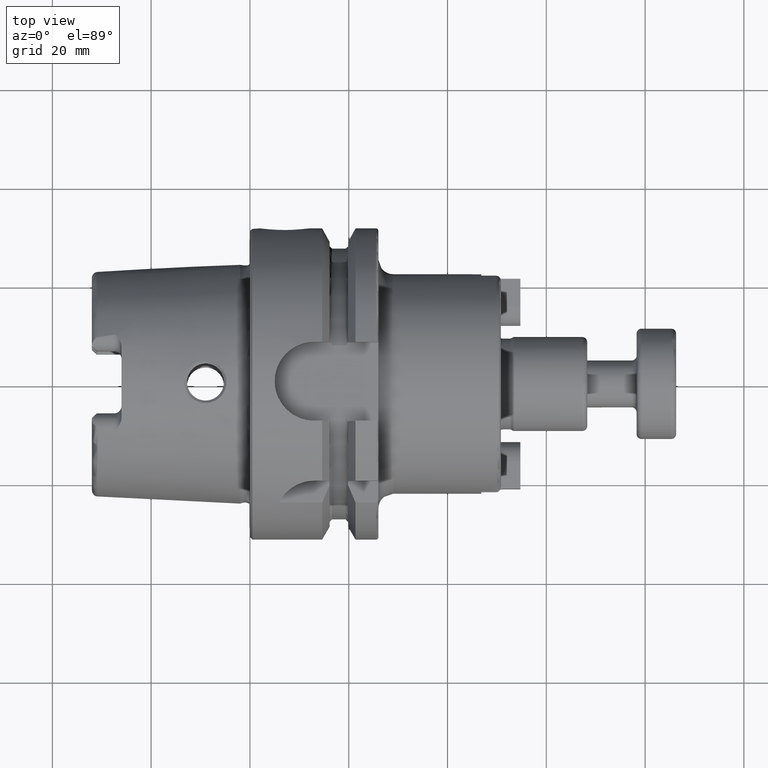
[diagram: clean part render]
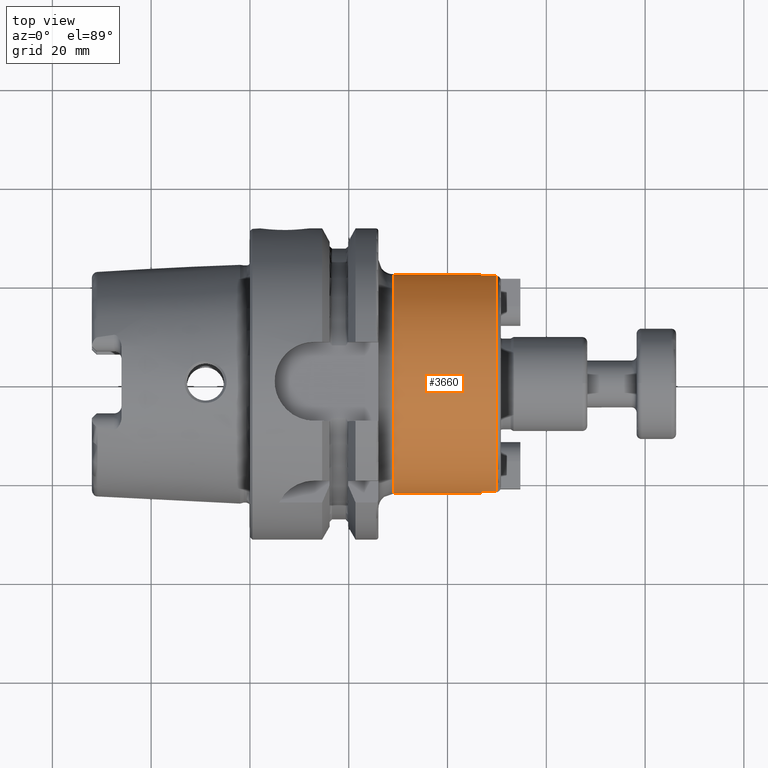
[diagram: same view with one face highlighted and labeled with its STEP entity id]
A machine part, top view. The second image highlights one B-rep face of the part: STEP entity #3660.
In plain terms, the highlighted cylindrical surface (bore or boss wall) has radius 22.225 mm, axis along (1, 0, 0).
Its self-contained STEP definition (entity closure, byte-faithful):
#792=CYLINDRICAL_SURFACE('',#4046,22.225);
#857=FACE_OUTER_BOUND('',#1053,.T.);
#1053=EDGE_LOOP('',(#2747,#2748,#2749,#2750,#2751,#2752,#2753,#2754,#2755,
#2756,#2757,#2758,#2759));
#1253=LINE('',#5721,#1447);
#1256=LINE('',#5747,#1450);
#1261=LINE('',#5768,#1455);
#1264=LINE('',#5792,#1458);
#1266=LINE('',#5796,#1460);
#1447=VECTOR('',#4564,10.);
#1450=VECTOR('',#4581,10.);
#1455=VECTOR('',#4588,10.);
#1458=VECTOR('',#4603,10.);
#1460=VECTOR('',#4607,22.225);
#1641=CIRCLE('',#4033,22.225);
#1643=CIRCLE('',#4035,22.225);
#1645=CIRCLE('',#4041,22.225);
#1648=CIRCLE('',#4047,22.225);
#1649=CIRCLE('',#4048,22.225);
#1650=CIRCLE('',#4049,22.225);
#1651=CIRCLE('',#4050,22.225);
#1879=VERTEX_POINT('',#5704);
#1882=VERTEX_POINT('',#5719);
#1883=VERTEX_POINT('',#5723);
#1885=VERTEX_POINT('',#5727);
#1887=VERTEX_POINT('',#5735);
#1890=VERTEX_POINT('',#5751);
#1893=VERTEX_POINT('',#5766);
#1894=VERTEX_POINT('',#5770);
#1897=VERTEX_POINT('',#5780);
#1899=VERTEX_POINT('',#5795);
#1900=VERTEX_POINT('',#5797);
#2205=EDGE_CURVE('',#1879,#1882,#1253,.T.);
#2206=EDGE_CURVE('',#1882,#1883,#1641,.T.);
#2209=EDGE_CURVE('',#1883,#1885,#1643,.T.);
#2213=EDGE_CURVE('',#1885,#1887,#1256,.T.);
#2219=EDGE_CURVE('',#1890,#1893,#1261,.T.);
#2220=EDGE_CURVE('',#1893,#1894,#1645,.T.);
#2226=EDGE_CURVE('',#1894,#1897,#1264,.T.);
#2228=EDGE_CURVE('',#1883,#1899,#1266,.T.);
#2229=EDGE_CURVE('',#1900,#1899,#1648,.T.);
#2230=EDGE_CURVE('',#1899,#1900,#1649,.T.);
#2231=EDGE_CURVE('',#1890,#1887,#1650,.T.);
#2232=EDGE_CURVE('',#1879,#1897,#1651,.T.);
#2747=ORIENTED_EDGE('',*,*,#2205,.T.);
#2748=ORIENTED_EDGE('',*,*,#2206,.T.);
#2749=ORIENTED_EDGE('',*,*,#2228,.T.);
#2750=ORIENTED_EDGE('',*,*,#2229,.F.);
#2751=ORIENTED_EDGE('',*,*,#2230,.F.);
#2752=ORIENTED_EDGE('',*,*,#2228,.F.);
#2753=ORIENTED_EDGE('',*,*,#2209,.T.);
#2754=ORIENTED_EDGE('',*,*,#2213,.T.);
#2755=ORIENTED_EDGE('',*,*,#2231,.F.);
#2756=ORIENTED_EDGE('',*,*,#2219,.T.);
#2757=ORIENTED_EDGE('',*,*,#2220,.T.);
#2758=ORIENTED_EDGE('',*,*,#2226,.T.);
#2759=ORIENTED_EDGE('',*,*,#2232,.F.);
#3660=ADVANCED_FACE('',(#857),#792,.T.);
#4033=AXIS2_PLACEMENT_3D('',#5724,#4567,#4568);
#4035=AXIS2_PLACEMENT_3D('',#5729,#4572,#4573);
#4041=AXIS2_PLACEMENT_3D('',#5771,#4591,#4592);
#4046=AXIS2_PLACEMENT_3D('',#5794,#4605,#4606);
#4047=AXIS2_PLACEMENT_3D('',#5798,#4608,#4609);
#4048=AXIS2_PLACEMENT_3D('',#5799,#4610,#4611);
#4049=AXIS2_PLACEMENT_3D('',#5800,#4612,#4613);
#4050=AXIS2_PLACEMENT_3D('',#5801,#4614,#4615);
#4564=DIRECTION('',(-1.,0.,0.));
#4567=DIRECTION('center_axis',(-1.,0.,0.));
#4568=DIRECTION('ref_axis',(0.,1.,0.));
#4572=DIRECTION('center_axis',(-1.,0.,0.));
#4573=DIRECTION('ref_axis',(0.,1.,0.));
#4581=DIRECTION('',(1.,0.,0.));
#4588=DIRECTION('',(-1.,0.,0.));
#4591=DIRECTION('center_axis',(-1.,0.,0.));
#4592=DIRECTION('ref_axis',(0.,1.,0.));
#4603=DIRECTION('',(1.,0.,0.));
#4605=DIRECTION('center_axis',(1.,0.,0.));
#4606=DIRECTION('ref_axis',(0.,1.,0.));
#4607=DIRECTION('',(-1.,0.,0.));
#4608=DIRECTION('center_axis',(-1.,0.,0.));
#4609=DIRECTION('ref_axis',(0.,-1.,-1.22464679914735E-16));
#4610=DIRECTION('center_axis',(-1.,0.,0.));
#4611=DIRECTION('ref_axis',(0.,-1.,-1.22464679914735E-16));
#4612=DIRECTION('center_axis',(1.,0.,0.));
#4613=DIRECTION('ref_axis',(0.,-1.,1.83697019872103E-16));
#4614=DIRECTION('center_axis',(1.,0.,0.));
#4615=DIRECTION('ref_axis',(0.,-1.,1.83697019872103E-16));
#5704=CARTESIAN_POINT('',(49.8,-21.868456735673,-3.965));
#5719=CARTESIAN_POINT('',(46.83,-21.868456735673,-3.965));
#5721=CARTESIAN_POINT('',(38.4,-21.868456735673,-3.965));
#5723=CARTESIAN_POINT('',(46.83,-22.225,-2.72177751110499E-15));
#5724=CARTESIAN_POINT('Origin',(46.83,0.,0.));
#5727=CARTESIAN_POINT('',(46.83,-21.868456735673,3.965));
#5729=CARTESIAN_POINT('Origin',(46.83,0.,0.));
#5735=CARTESIAN_POINT('',(49.8,-21.868456735673,3.965));
#5747=CARTESIAN_POINT('',(38.4,-21.868456735673,3.965));
#5751=CARTESIAN_POINT('',(49.8,21.868456735673,3.965));
#5766=CARTESIAN_POINT('',(46.83,21.868456735673,3.965));
#5768=CARTESIAN_POINT('',(38.4,21.868456735673,3.965));
#5770=CARTESIAN_POINT('',(46.83,21.868456735673,-3.965));
#5771=CARTESIAN_POINT('Origin',(46.83,0.,0.));
#5780=CARTESIAN_POINT('',(49.8,21.868456735673,-3.965));
#5792=CARTESIAN_POINT('',(38.4,21.868456735673,-3.965));
#5794=CARTESIAN_POINT('Origin',(38.4,0.,0.));
#5795=CARTESIAN_POINT('',(29.,-22.225,-2.72177751110499E-15));
#5796=CARTESIAN_POINT('',(38.4,-22.225,-2.72177751110499E-15));
#5797=CARTESIAN_POINT('',(29.,-2.72177751110499E-15,-22.225));
#5798=CARTESIAN_POINT('Origin',(29.,0.,0.));
#5799=CARTESIAN_POINT('Origin',(29.,0.,0.));
#5800=CARTESIAN_POINT('Origin',(49.8,0.,0.));
#5801=CARTESIAN_POINT('Origin',(49.8,0.,0.));